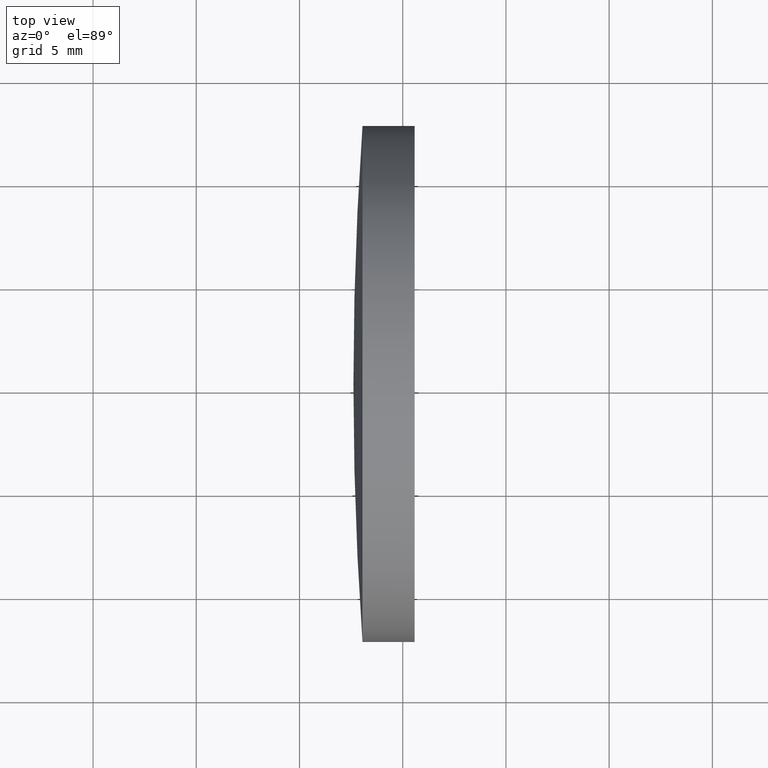
[diagram: clean part render]
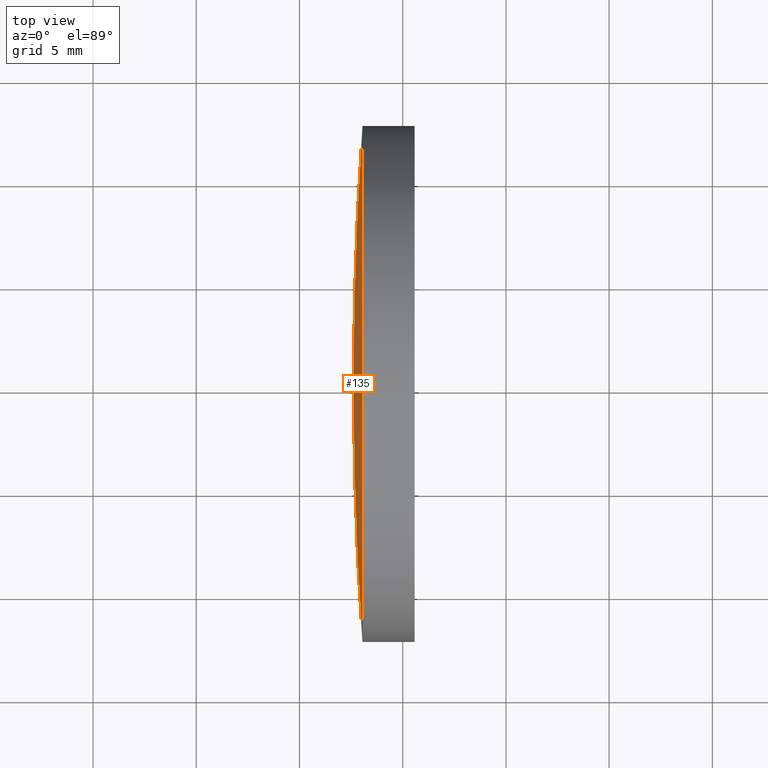
[diagram: same view with one face highlighted and labeled with its STEP entity id]
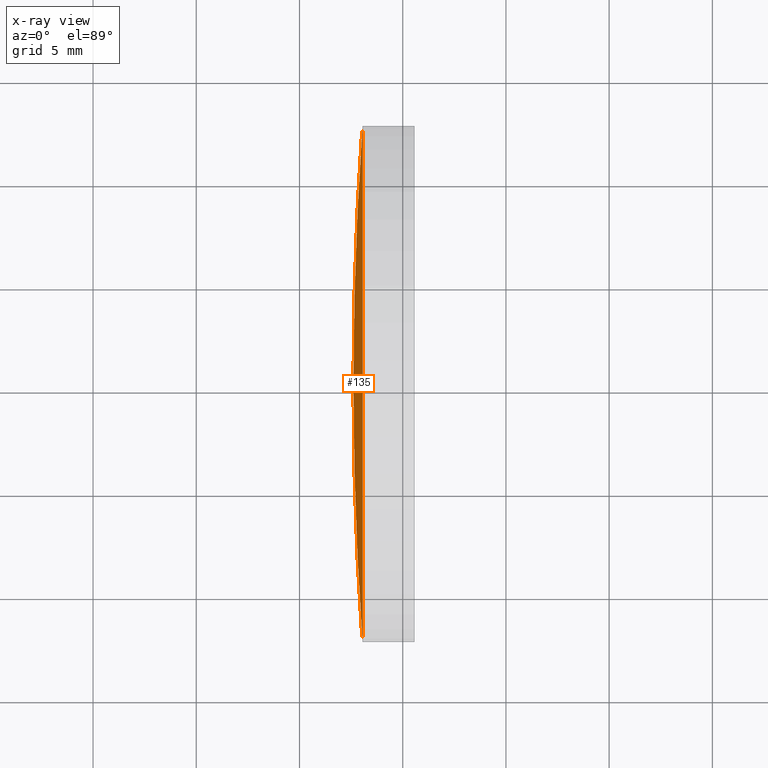
[diagram: x-ray of the same camera — body ghosted, the highlighted face saturated]
A machine part, top view. The second image highlights one B-rep face of the part: STEP entity #135.
The next image is the same camera in x-ray: the body ghosted, the highlighted face saturated — about 0% of this face is hidden behind the body in this view.
In plain terms, the highlighted spherical surface has radius 178 mm.
Its self-contained STEP definition (entity closure, byte-faithful):
#8 = DIRECTION ( 'NONE',  ( -0.0000000000000000000, 0.0000000000000000000, 1.000000000000000000 ) ) ;
#16 = VERTEX_POINT ( 'NONE', #128 ) ;
#22 = SPHERICAL_SURFACE ( 'NONE', #120, 178.0000000000000600 ) ;
#23 = EDGE_CURVE ( 'NONE', #16, #178, #99, .T. ) ;
#27 = EDGE_CURVE ( 'NONE', #171, #178, #79, .T. ) ;
#28 = DIRECTION ( 'NONE',  ( -1.000000000000000000, -6.937607244762875000E-016, -0.0000000000000000000 ) ) ;
#30 = DIRECTION ( 'NONE',  ( 1.110223024625156100E-015, -1.000000000000000000, 0.0000000000000000000 ) ) ;
#34 = ORIENTED_EDGE ( 'NONE', *, *, #23, .F. ) ;
#62 = DIRECTION ( 'NONE',  ( 0.0000000000000000000, 1.000000000000000000, 1.224646799147353200E-016 ) ) ;
#77 = CARTESIAN_POINT ( 'NONE',  ( 122.6121936984947900, 65.21684047094018400, 0.0000000000000000000 ) ) ;
#79 = CIRCLE ( 'NONE', #174, 178.0000000000000600 ) ;
#88 = CARTESIAN_POINT ( 'NONE',  ( 123.0516406468668300, 77.71684047094032600, 0.0000000000000000000 ) ) ;
#95 = EDGE_LOOP ( 'NONE', ( #34, #186, #191 ) ) ;
#97 = DIRECTION ( 'NONE',  ( -0.0000000000000000000, 0.0000000000000000000, -1.000000000000000000 ) ) ;
#99 = CIRCLE ( 'NONE', #165, 178.0000000000000600 ) ;
#109 = DIRECTION ( 'NONE',  ( -8.496118506040342700E-032, 1.224646799147353200E-016, -1.000000000000000000 ) ) ;
#116 = DIRECTION ( 'NONE',  ( -6.237208003512113900E-016, 1.000000000000000000, 0.0000000000000000000 ) ) ;
#120 = AXIS2_PLACEMENT_3D ( 'NONE', #189, #97, #116 ) ;
#125 = CARTESIAN_POINT ( 'NONE',  ( 123.0516406468668300, 65.21684047094032600, 0.0000000000000000000 ) ) ;
#128 = CARTESIAN_POINT ( 'NONE',  ( 123.0516406468668300, 52.71684047094017700, -1.530808498934191500E-015 ) ) ;
#134 = AXIS2_PLACEMENT_3D ( 'NONE', #125, #28, #30 ) ;
#135 = ADVANCED_FACE ( 'NONE', ( #145 ), #22, .T. ) ;
#137 = EDGE_CURVE ( 'NONE', #16, #171, #179, .T. ) ;
#145 = FACE_OUTER_BOUND ( 'NONE', #95, .T. ) ;
#158 = DIRECTION ( 'NONE',  ( 1.000000000000000000, 0.0000000000000000000, 0.0000000000000000000 ) ) ;
#165 = AXIS2_PLACEMENT_3D ( 'NONE', #187, #109, #62 ) ;
#171 = VERTEX_POINT ( 'NONE', #88 ) ;
#174 = AXIS2_PLACEMENT_3D ( 'NONE', #185, #8, #158 ) ;
#178 = VERTEX_POINT ( 'NONE', #77 ) ;
#179 = CIRCLE ( 'NONE', #134, 12.50000000000000400 ) ;
#185 = CARTESIAN_POINT ( 'NONE',  ( 300.6121936984948200, 65.21684047094029800, 0.0000000000000000000 ) ) ;
#186 = ORIENTED_EDGE ( 'NONE', *, *, #137, .T. ) ;
#187 = CARTESIAN_POINT ( 'NONE',  ( 300.6121936984948200, 65.21684047094029800, 0.0000000000000000000 ) ) ;
#189 = CARTESIAN_POINT ( 'NONE',  ( 300.6121936984948200, 65.21684047094029800, 0.0000000000000000000 ) ) ;
#191 = ORIENTED_EDGE ( 'NONE', *, *, #27, .T. ) ;